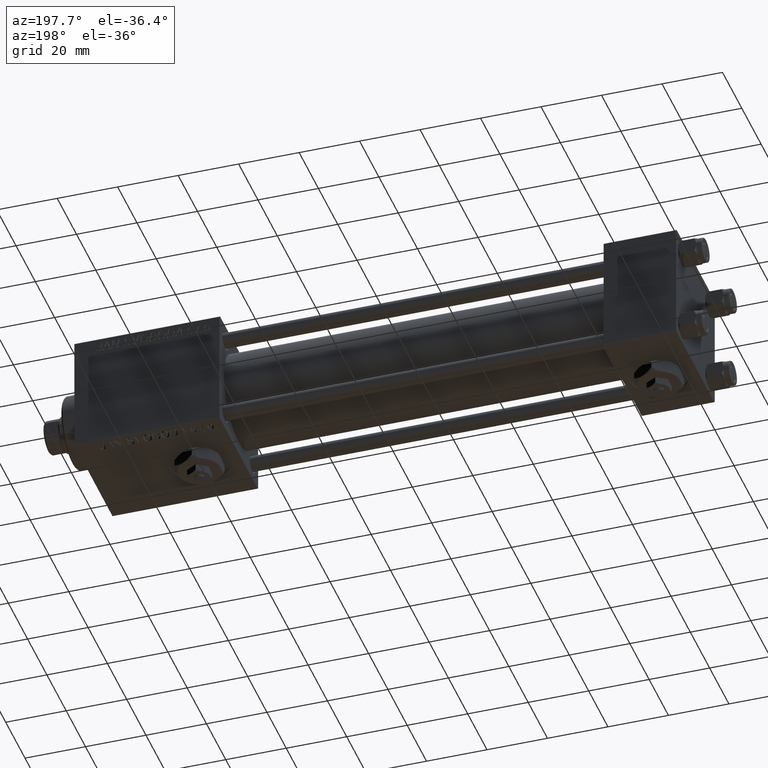
[diagram: clean part render]
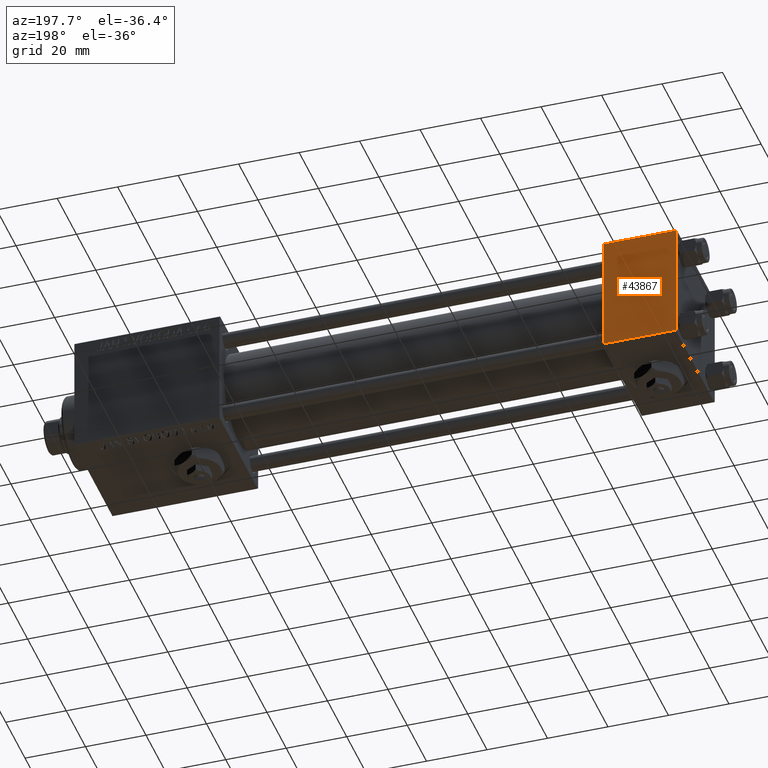
[diagram: same view with one face highlighted and labeled with its STEP entity id]
A machine part, auxiliary view. The second image highlights one B-rep face of the part: STEP entity #43867.
In plain terms, the highlighted planar face has unit normal (0, 1, 0).
Its self-contained STEP definition (entity closure, byte-faithful):
#834 = VERTEX_POINT ( 'NONE', #48016 ) ;
#3483 = EDGE_CURVE ( 'NONE', #50384, #30125, #5982, .T. ) ;
#5258 = LINE ( 'NONE', #37417, #17736 ) ;
#5690 = ORIENTED_EDGE ( 'NONE', *, *, #27201, .T. ) ;
#5982 = LINE ( 'NONE', #34950, #13719 ) ;
#10820 = CARTESIAN_POINT ( 'NONE',  ( 24.00000000000000000, 20.00000000000000000, 20.00000000000000000 ) ) ;
#11435 = EDGE_CURVE ( 'NONE', #834, #50384, #30859, .T. ) ;
#12168 = DIRECTION ( 'NONE',  ( -0.000000000000000000, 1.000000000000000000, 0.000000000000000000 ) ) ;
#12911 = CARTESIAN_POINT ( 'NONE',  ( 24.00000000000000000, 20.00000000000000000, -19.50000000000002132 ) ) ;
#13719 = VECTOR ( 'NONE', #34186, 1000.000000000000000 ) ;
#14399 = VECTOR ( 'NONE', #31848, 1000.000000000000000 ) ;
#14678 = VECTOR ( 'NONE', #34816, 1000.000000000000000 ) ;
#15749 = CARTESIAN_POINT ( 'NONE',  ( 24.00000000000000000, 20.00000000000000000, 19.49999999999999289 ) ) ;
#16633 = DIRECTION ( 'NONE',  ( 0.000000000000000000, -0.000000000000000000, 1.000000000000000000 ) ) ;
#17736 = VECTOR ( 'NONE', #41124, 1000.000000000000000 ) ;
#23189 = EDGE_LOOP ( 'NONE', ( #51566, #50244, #30216, #5690 ) ) ;
#23752 = CARTESIAN_POINT ( 'NONE',  ( 24.00000000000000000, 20.00000000000000000, 20.00000000000000000 ) ) ;
#24544 = PLANE ( 'NONE',  #34559 ) ;
#27201 = EDGE_CURVE ( 'NONE', #34813, #834, #51624, .T. ) ;
#30125 = VERTEX_POINT ( 'NONE', #42090 ) ;
#30216 = ORIENTED_EDGE ( 'NONE', *, *, #44862, .F. ) ;
#30859 = LINE ( 'NONE', #10820, #14678 ) ;
#31848 = DIRECTION ( 'NONE',  ( 1.000000000000000000, 0.000000000000000000, 0.000000000000000000 ) ) ;
#34186 = DIRECTION ( 'NONE',  ( -1.000000000000000000, 0.000000000000000000, 0.000000000000000000 ) ) ;
#34559 = AXIS2_PLACEMENT_3D ( 'NONE', #23752, #12168, #16633 ) ;
#34813 = VERTEX_POINT ( 'NONE', #43409 ) ;
#34816 = DIRECTION ( 'NONE',  ( 0.000000000000000000, 0.000000000000000000, -1.000000000000000000 ) ) ;
#34950 = CARTESIAN_POINT ( 'NONE',  ( 24.00000000000000000, 20.00000000000000000, -19.50000000000002132 ) ) ;
#37417 = CARTESIAN_POINT ( 'NONE',  ( 0.000000000000000000, 20.00000000000000000, 20.00000000000000000 ) ) ;
#41124 = DIRECTION ( 'NONE',  ( 0.000000000000000000, 0.000000000000000000, -1.000000000000000000 ) ) ;
#42090 = CARTESIAN_POINT ( 'NONE',  ( 0.000000000000000000, 20.00000000000000000, -19.50000000000002132 ) ) ;
#43409 = CARTESIAN_POINT ( 'NONE',  ( 0.000000000000000000, 20.00000000000000000, 19.49999999999999289 ) ) ;
#43867 = ADVANCED_FACE ( 'NONE', ( #51719 ), #24544, .T. ) ;
#44862 = EDGE_CURVE ( 'NONE', #34813, #30125, #5258, .T. ) ;
#48016 = CARTESIAN_POINT ( 'NONE',  ( 24.00000000000000000, 20.00000000000000000, 19.49999999999999289 ) ) ;
#50244 = ORIENTED_EDGE ( 'NONE', *, *, #3483, .T. ) ;
#50384 = VERTEX_POINT ( 'NONE', #12911 ) ;
#51566 = ORIENTED_EDGE ( 'NONE', *, *, #11435, .T. ) ;
#51624 = LINE ( 'NONE', #15749, #14399 ) ;
#51719 = FACE_OUTER_BOUND ( 'NONE', #23189, .T. ) ;